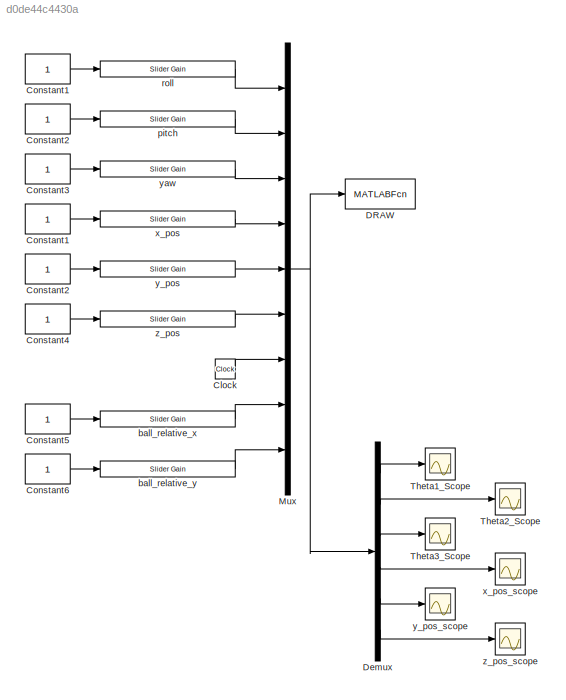
MODEL slx_d0de44c4430a
KIND model
CONFIG AbsTol = auto
CONFIG FixedStep = auto
CONFIG InitFcn = param
CONFIG MaxStep = auto
CONFIG MinStep = auto
CONFIG RelTol = 1e-3
CONFIG SampleTimeConstraint = Unconstrained
CONFIG Solver = ode45
CONFIG SolverMode = Auto
CONFIG SolverName = ode45
CONFIG StartTime = 0.0
CONFIG StopTime = inf
BLOCK [Clock] Clock
BLOCK [Constant] Constant1
BLOCK [Constant] Constant1 
BLOCK [Constant] Constant2
BLOCK [Constant] Constant2 
BLOCK [Constant] Constant3
BLOCK [Constant] Constant4
BLOCK [Constant] Constant5
BLOCK [Constant] Constant6
BLOCK [MATLABFcn] DRAW
  MATLABFcn = drawSystem(u,P)
  OutputDimensions = 0
  Ports = [1]
BLOCK [Demux] Demux
  DisplayOption = bar
  Outputs = 6
  Ports = [1, 6]
BLOCK [Mux] Mux
  DisplayOption = bar
  Inputs = 9
  Ports = [9, 1]
BLOCK [Scope] Theta1_Scope 
  Floating = off
  NumInputPorts = 1
  Ports = [1]
BLOCK [Scope] Theta2_Scope 
  Floating = off
  NumInputPorts = 1
  Ports = [1]
  SaveName = ScopeData3
BLOCK [Scope] Theta3_Scope
  Floating = off
  NumInputPorts = 1
  Ports = [1]
  SaveName = ScopeData1
BLOCK [Reference] ball_relative_x  REF=simulink/Math
Operations/Slider
Gain
  Ports = [1, 1]
  SourceBlock = simulink/Math\nOperations/Slider\nGain
  SourceType = Slider Gain
  gain = 1
  high = 2
  low = 0
BLOCK [Reference] ball_relative_y  REF=simulink/Math
Operations/Slider
Gain
  Ports = [1, 1]
  SourceBlock = simulink/Math\nOperations/Slider\nGain
  SourceType = Slider Gain
  gain = 1
  high = 2
  low = 0
BLOCK [Reference] pitch   REF=simulink/Math
Operations/Slider
Gain
  Ports = [1, 1]
  SourceBlock = simulink/Math\nOperations/Slider\nGain
  SourceType = Slider Gain
  gain = 10
  high = 15
  low = -10
BLOCK [Reference] roll   REF=simulink/Math
Operations/Slider
Gain
  Ports = [1, 1]
  SourceBlock = simulink/Math\nOperations/Slider\nGain
  SourceType = Slider Gain
  gain = -10
  high = 10
  low = -10
BLOCK [Reference] x_pos  REF=simulink/Math
Operations/Slider
Gain
  Ports = [1, 1]
  SourceBlock = simulink/Math\nOperations/Slider\nGain
  SourceType = Slider Gain
  gain = 0
  high = 2
  low = 0
BLOCK [Scope] x_pos_scope
  Floating = off
  NumInputPorts = 1
  Ports = [1]
  SaveName = ScopeData4
BLOCK [Reference] y_pos  REF=simulink/Math
Operations/Slider
Gain
  Ports = [1, 1]
  SourceBlock = simulink/Math\nOperations/Slider\nGain
  SourceType = Slider Gain
  gain = 0
  high = 2
  low = 0
BLOCK [Scope] y_pos_scope
  Floating = off
  NumInputPorts = 1
  Ports = [1]
  SaveName = ScopeData2
BLOCK [Reference] yaw  REF=simulink/Math
Operations/Slider
Gain
  Ports = [1, 1]
  SourceBlock = simulink/Math\nOperations/Slider\nGain
  SourceType = Slider Gain
  gain = 0
  high = 2
  low = 0
BLOCK [Reference] z_pos  REF=simulink/Math
Operations/Slider
Gain
  Ports = [1, 1]
  SourceBlock = simulink/Math\nOperations/Slider\nGain
  SourceType = Slider Gain
  gain = 0
  high = 2
  low = 0
BLOCK [Scope] z_pos_scope
  Floating = off
  NumInputPorts = 1
  Ports = [1]
  SaveName = ScopeData5
LINE Clock:1 -> Mux:7
LINE Constant1 :1 -> roll :1
LINE Constant1:1 -> x_pos:1
LINE Constant2 :1 -> pitch :1
LINE Constant2:1 -> y_pos:1
LINE Constant3:1 -> yaw:1
LINE Constant4:1 -> z_pos:1
LINE Constant5:1 -> ball_relative_x:1
LINE Constant6:1 -> ball_relative_y:1
LINE Demux:1 -> Theta1_Scope :1
LINE Demux:2 -> Theta2_Scope :1
LINE Demux:3 -> Theta3_Scope:1
LINE Demux:4 -> x_pos_scope:1
LINE Demux:5 -> y_pos_scope:1
LINE Demux:6 -> z_pos_scope:1
NET Mux:1 -> DRAW:1, Demux:1
LINE ball_relative_x:1 -> Mux:8
LINE ball_relative_y:1 -> Mux:9
LINE pitch :1 -> Mux:2
LINE roll :1 -> Mux:1
LINE x_pos:1 -> Mux:4
LINE y_pos:1 -> Mux:5
LINE yaw:1 -> Mux:3
LINE z_pos:1 -> Mux:6
note: NET lines group one-source signal fan-out (src -> all destinations, sorted); 1:1 wires keep LINE
